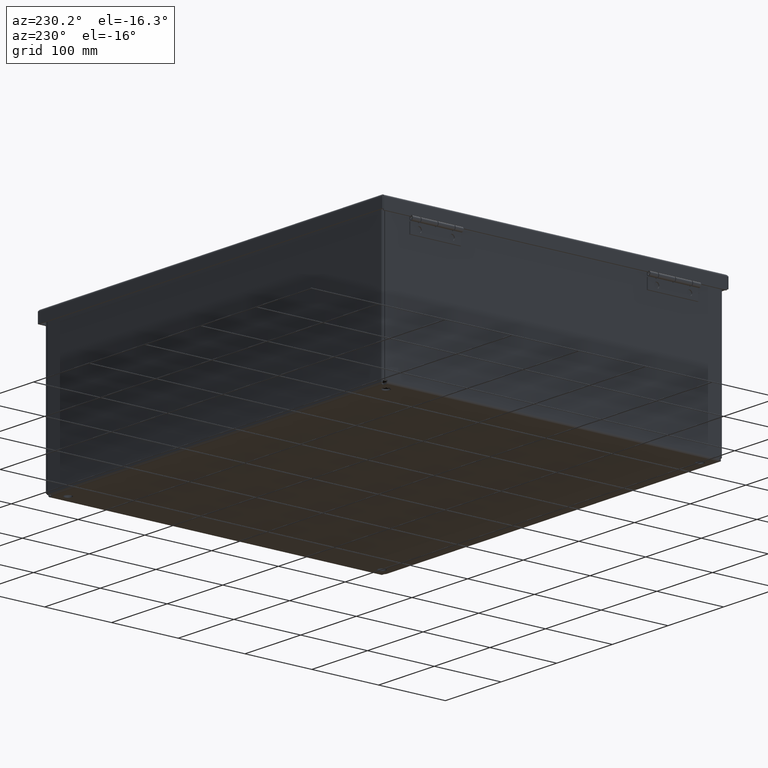
[diagram: clean part render]
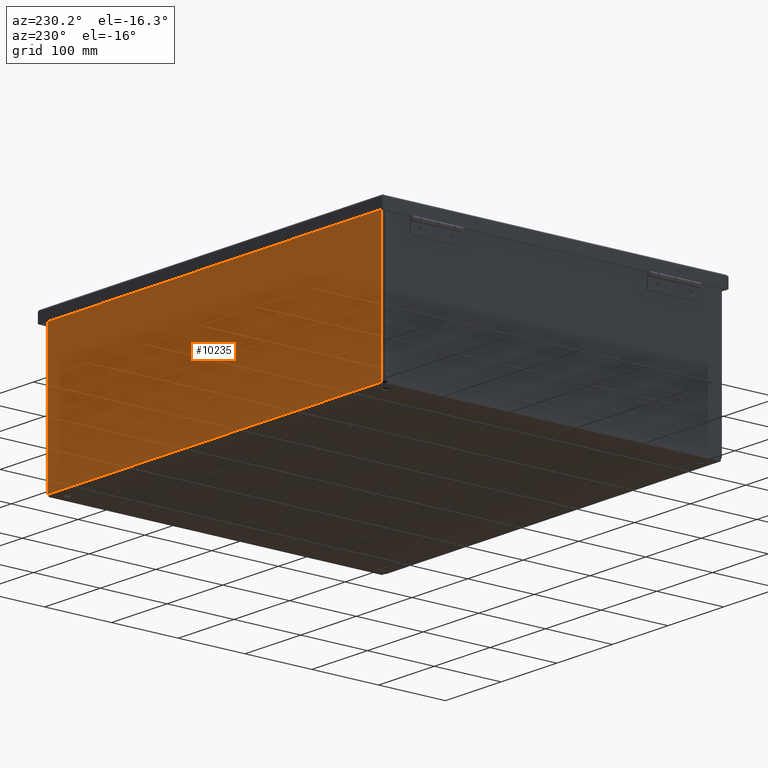
[diagram: same view with one face highlighted and labeled with its STEP entity id]
A machine part, auxiliary view. The second image highlights one B-rep face of the part: STEP entity #10235.
In plain terms, the highlighted planar face has unit normal (0, -1, 0).
Its self-contained STEP definition (entity closure, byte-faithful):
#482=LINE('',#15215,#1411);
#487=LINE('',#15233,#1416);
#493=LINE('',#15245,#1422);
#494=LINE('',#15247,#1423);
#495=LINE('',#15249,#1424);
#496=LINE('',#15251,#1425);
#497=LINE('',#15253,#1426);
#498=LINE('',#15255,#1427);
#499=LINE('',#15256,#1428);
#500=LINE('',#15258,#1429);
#501=LINE('',#15259,#1430);
#502=LINE('',#15260,#1431);
#1411=VECTOR('',#12231,8.50825);
#1416=VECTOR('',#12248,0.0310499999999996);
#1422=VECTOR('',#12256,0.0310500000000003);
#1423=VECTOR('',#12259,0.170250000000002);
#1424=VECTOR('',#12260,0.00020000000000138);
#1425=VECTOR('',#12261,0.000199999999999981);
#1426=VECTOR('',#12262,23.2381);
#1427=VECTOR('',#12263,0.000199999999999981);
#1428=VECTOR('',#12264,0.000199999999999981);
#1429=VECTOR('',#12265,0.170250000000001);
#1430=VECTOR('',#12266,8.50825);
#1431=VECTOR('',#12267,23.579);
#2250=PLANE('',#10906);
#2726=FACE_OUTER_BOUND('',#3350,.T.);
#3350=EDGE_LOOP('',(#7064,#7065,#7066,#7067,#7068,#7069,#7070,#7071,#7072,
#7073,#7074,#7075));
#4460=VERTEX_POINT('',#15207);
#4462=VERTEX_POINT('',#15213);
#4464=VERTEX_POINT('',#15219);
#4468=VERTEX_POINT('',#15230);
#4469=VERTEX_POINT('',#15232);
#4472=VERTEX_POINT('',#15239);
#4474=VERTEX_POINT('',#15243);
#4475=VERTEX_POINT('',#15248);
#4476=VERTEX_POINT('',#15250);
#4477=VERTEX_POINT('',#15252);
#4478=VERTEX_POINT('',#15254);
#4479=VERTEX_POINT('',#15257);
#5435=EDGE_CURVE('',#4460,#4462,#482,.T.);
#5443=EDGE_CURVE('',#4469,#4468,#487,.T.);
#5449=EDGE_CURVE('',#4472,#4474,#493,.T.);
#5450=EDGE_CURVE('',#4462,#4469,#494,.T.);
#5451=EDGE_CURVE('',#4468,#4475,#495,.T.);
#5452=EDGE_CURVE('',#4475,#4476,#496,.T.);
#5453=EDGE_CURVE('',#4476,#4477,#497,.T.);
#5454=EDGE_CURVE('',#4477,#4478,#498,.T.);
#5455=EDGE_CURVE('',#4478,#4472,#499,.T.);
#5456=EDGE_CURVE('',#4474,#4479,#500,.T.);
#5457=EDGE_CURVE('',#4479,#4464,#501,.T.);
#5458=EDGE_CURVE('',#4464,#4460,#502,.T.);
#7064=ORIENTED_EDGE('',*,*,#5450,.T.);
#7065=ORIENTED_EDGE('',*,*,#5443,.T.);
#7066=ORIENTED_EDGE('',*,*,#5451,.T.);
#7067=ORIENTED_EDGE('',*,*,#5452,.T.);
#7068=ORIENTED_EDGE('',*,*,#5453,.T.);
#7069=ORIENTED_EDGE('',*,*,#5454,.T.);
#7070=ORIENTED_EDGE('',*,*,#5455,.T.);
#7071=ORIENTED_EDGE('',*,*,#5449,.T.);
#7072=ORIENTED_EDGE('',*,*,#5456,.T.);
#7073=ORIENTED_EDGE('',*,*,#5457,.T.);
#7074=ORIENTED_EDGE('',*,*,#5458,.T.);
#7075=ORIENTED_EDGE('',*,*,#5435,.T.);
#10235=ADVANCED_FACE('',(#2726),#2250,.F.);
#10906=AXIS2_PLACEMENT_3D('',#15246,#12257,#12258);
#12231=DIRECTION('',(1.60849400311198E-16,1.,0.));
#12248=DIRECTION('',(0.,1.,0.));
#12256=DIRECTION('',(0.,-1.,0.));
#12257=DIRECTION('center_axis',(0.,0.,1.));
#12258=DIRECTION('ref_axis',(1.,0.,0.));
#12259=DIRECTION('',(1.,0.,0.));
#12260=DIRECTION('',(1.,0.,0.));
#12261=DIRECTION('',(0.,1.,0.));
#12262=DIRECTION('',(1.,2.40760849252926E-16,0.));
#12263=DIRECTION('',(0.,-1.,0.));
#12264=DIRECTION('',(1.,0.,0.));
#12265=DIRECTION('',(1.,0.,0.));
#12266=DIRECTION('',(1.60849400311198E-16,-1.,0.));
#12267=DIRECTION('',(-1.,-1.18014358146819E-16,0.));
#15207=CARTESIAN_POINT('',(-11.7895,-4.301,-1.09273919746571E-17));
#15213=CARTESIAN_POINT('',(-11.7895,4.20725,0.));
#15215=CARTESIAN_POINT('',(-11.7895,-2.1505,0.));
#15219=CARTESIAN_POINT('',(11.7895,-4.301,-3.27821759239712E-17));
#15230=CARTESIAN_POINT('',(-11.61925,4.2383,-2.18547839493141E-17));
#15232=CARTESIAN_POINT('',(-11.61925,4.20725,0.));
#15233=CARTESIAN_POINT('',(-11.61925,2.103625,0.));
#15239=CARTESIAN_POINT('',(11.61925,4.2383,-2.18547839493141E-17));
#15243=CARTESIAN_POINT('',(11.61925,4.20725,0.));
#15245=CARTESIAN_POINT('',(11.61925,2.1505,0.));
#15246=CARTESIAN_POINT('Origin',(-1.3987061727561E-15,-6.99353086378051E-16,
0.));
#15247=CARTESIAN_POINT('',(-5.926,4.20725,0.));
#15248=CARTESIAN_POINT('',(-11.61905,4.2383,-2.18547839493141E-17));
#15249=CARTESIAN_POINT('',(-5.809625,4.2383,0.));
#15250=CARTESIAN_POINT('',(-11.61905,4.2385,-2.18547839493141E-17));
#15251=CARTESIAN_POINT('',(-11.61905,2.11915,0.));
#15252=CARTESIAN_POINT('',(11.61905,4.2385,-2.18547839493141E-17));
#15253=CARTESIAN_POINT('',(-5.809525,4.2385,0.));
#15254=CARTESIAN_POINT('',(11.61905,4.2383,-2.18547839493141E-17));
#15255=CARTESIAN_POINT('',(11.61905,2.1505,0.));
#15256=CARTESIAN_POINT('',(5.809525,4.2383,0.));
#15257=CARTESIAN_POINT('',(11.7895,4.20725,0.));
#15258=CARTESIAN_POINT('',(5.809625,4.20725,0.));
#15259=CARTESIAN_POINT('',(11.7895,2.1505,0.));
#15260=CARTESIAN_POINT('',(11.852,-4.301,0.));